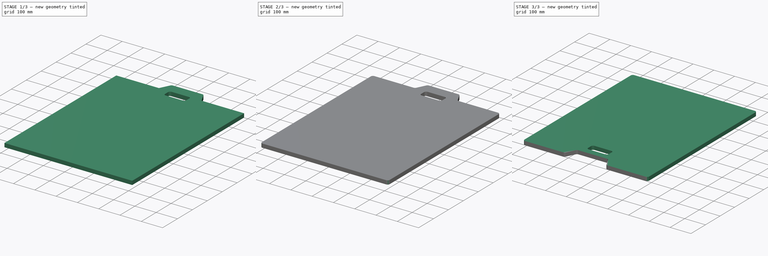
[diagram: build sequence overview — one tinted view per stage of 3, left to right]
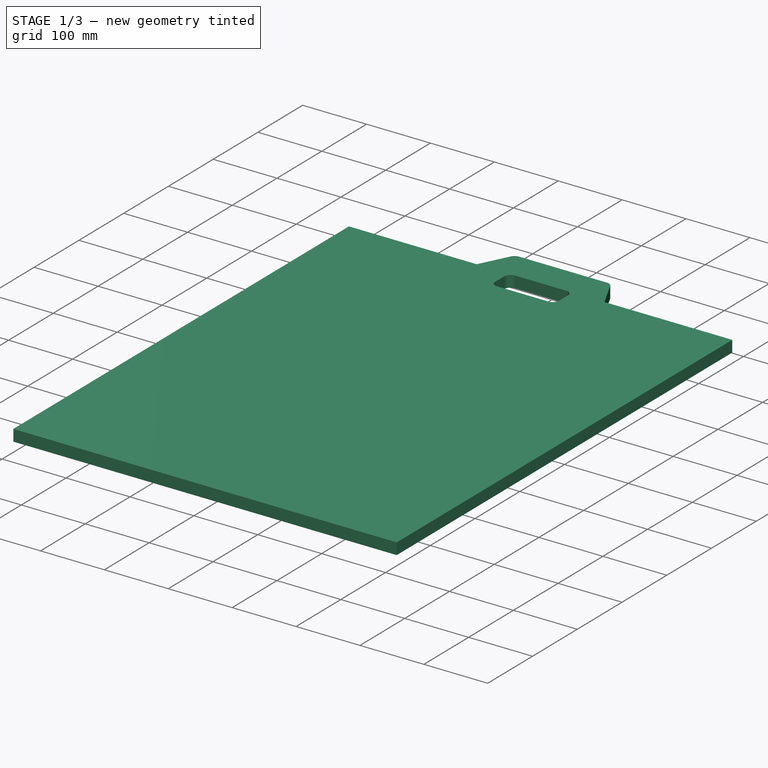
[diagram: stage 1 of 3 — iso view after this stage's code; geometry added in this stage tinted green]
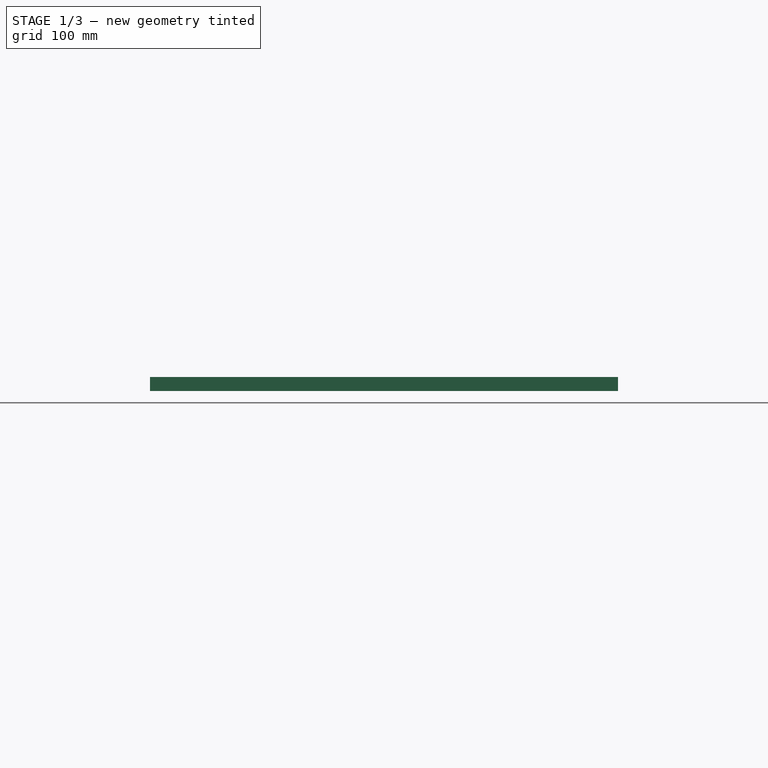
[diagram: stage 1 of 3 — front view after this stage's code; geometry added in this stage tinted green]
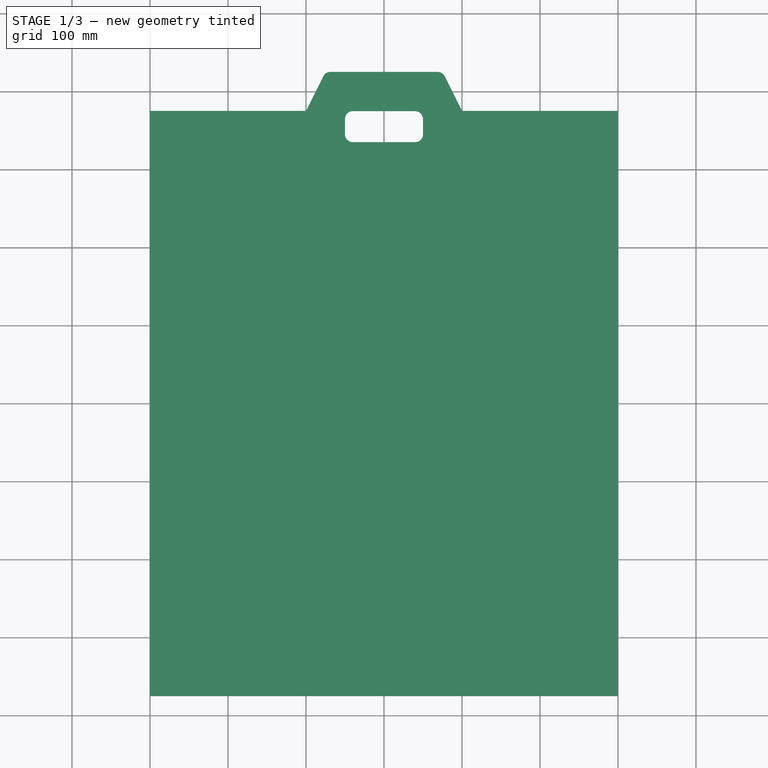
[diagram: stage 1 of 3 — top view after this stage's code; geometry added in this stage tinted green]
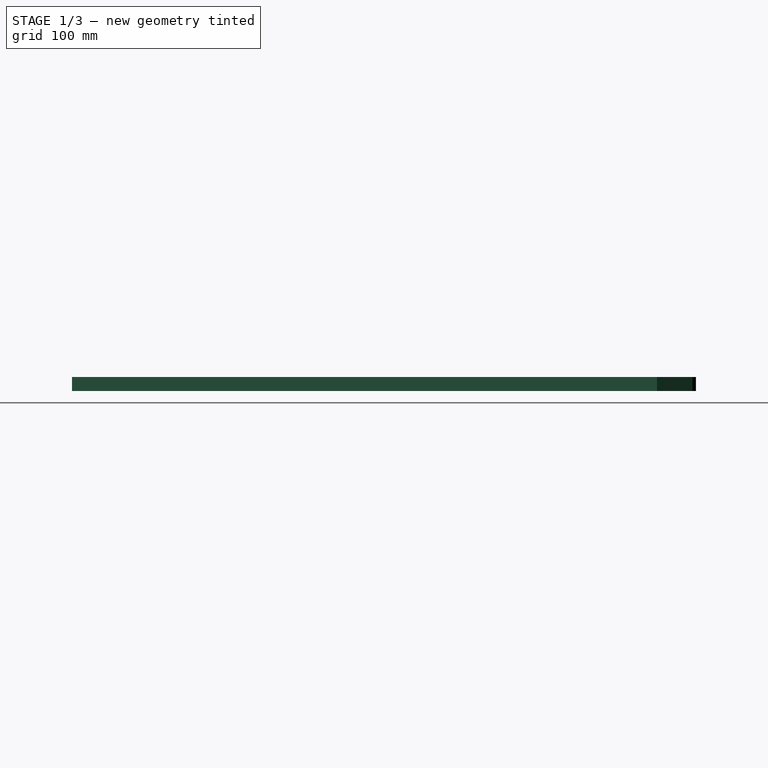
[diagram: stage 1 of 3 — right view after this stage's code; geometry added in this stage tinted green]
FCSTD DOCUMENT  (FreeCAD 1.0R39109 (Git))
Label: VERSTAK
License: All rights reserved
LicenseURL: https://en.wikipedia.org/wiki/All_rights_reserved
objects: PartDesign::Fillet×4, Sketcher::SketchObject×3, PartDesign::Body×3, PartDesign::SubShapeBinder×3, PartDesign::Pad×2
note: 30 computed .brp shape members not serialized (recipe doc carries the construction recipe); baked Part::Feature solids carry a one-line shape summary decoded from their .brp

FEATURE [Sketcher::SketchObject] Sketch
  ArcFitTolerance = 1e-06
  AttachmentSupport = -> [XY_Plane]
  FullyConstrained = true
  MakeInternals = false
  MapMode = 5
  sketch-geometry (19):
    g0: LineSegment StartX=-300 StartY=-375 StartZ=0 EndX=300 EndY=-375 EndZ=0
    g1: LineSegment StartX=300 StartY=-375 StartZ=0 EndX=300 EndY=375 EndZ=0
    g2: LineSegment StartX=-300 StartY=375 StartZ=0 EndX=-300 EndY=-375 EndZ=0
    g3: GeomPoint [constr] X=0 Y=0 Z=0
    g4: LineSegment StartX=-100 StartY=375 StartZ=0 EndX=-75 EndY=425 EndZ=0
    g5: LineSegment StartX=-75 StartY=425 StartZ=0 EndX=75 EndY=425 EndZ=0
    g6: LineSegment StartX=75 StartY=425 StartZ=0 EndX=100 EndY=375 EndZ=0
    g7: LineSegment StartX=-300 StartY=375 StartZ=0 EndX=-100 EndY=375 EndZ=0
    g8: LineSegment StartX=300 StartY=375 StartZ=0 EndX=100 EndY=375 EndZ=0
    g9: LineSegment StartX=-50 StartY=365 StartZ=0 EndX=-50 EndY=345 EndZ=0
    g10: LineSegment StartX=-40 StartY=335 StartZ=0 EndX=40 EndY=335 EndZ=0
    g11: LineSegment StartX=50 StartY=345 StartZ=0 EndX=50 EndY=365 EndZ=0
    g12: LineSegment StartX=40 StartY=375 StartZ=0 EndX=-40 EndY=375 EndZ=0
    g13: ArcOfCircle CenterX=-40 CenterY=365 CenterZ=0 NormalX=0 NormalY=0 NormalZ=1 AngleXU=0 Radius=10 StartAngle=1.5708 EndAngle=3.14159
    g14: ArcOfCircle CenterX=-40 CenterY=345 CenterZ=0 NormalX=0 NormalY=0 NormalZ=1 AngleXU=0 Radius=10 StartAngle=3.14159 EndAngle=4.71239
    g15: ArcOfCircle CenterX=40 CenterY=345 CenterZ=0 NormalX=0 NormalY=0 NormalZ=1 AngleXU=0 Radius=10 StartAngle=4.71239 EndAngle=6.28319
    g16: ArcOfCircle CenterX=40 CenterY=365 CenterZ=0 NormalX=0 NormalY=0 NormalZ=1 AngleXU=0 Radius=10 StartAngle=-1.8e-15 EndAngle=1.5708
    g17: GeomPoint [constr] X=-50 Y=375 Z=0
    g18: GeomPoint [constr] X=50 Y=335 Z=0
  constraints (45):
    c: Coincident(g0,g1)
    c: Coincident(g2,g0)
    c: Horizontal(g0)
    c: Vertical(g1)
    c: Vertical(g2)
    c: Symmetric(g1,g0,g3)
    c: Distance(g1,g2) = 600
    c: Distance(g0,g2) = 750
    c: Coincident(g3,g-1)
    c: Coincident(g4,g5)
    c: Coincident(g5,g6)
    c: DistanceX(g4,g6) = 200
    c: DistanceX(g5,g5) = 150
    c: Symmetric(g4,g6,g-2)
    c: Symmetric(g5,g4,g-2)
    c: Distance(g1,g5) = 50
    c: Coincident(g7,g2)
    c: Coincident(g7,g4)
    c: Horizontal(g7)
    c: Coincident(g8,g1)
    c: Coincident(g8,g6)
    c: Horizontal(g8)
    c: Tangent(g9,g13) = -1.5708
    c: Tangent(g9,g14) = -1.5708
    c: Tangent(g10,g14) = -1.5708
    c: Tangent(g10,g15) = -1.5708
    c: Tangent(g11,g15) = -1.5708
    c: Tangent(g11,g16) = -1.5708
    c: Tangent(g12,g16) = -1.5708
    c: Tangent(g12,g13) = -1.5708
    c: Vertical(g9)
    c: Vertical(g11)
    c: Horizontal(g10)
    c: Equal(g13,g14)
    c: Equal(g14,g15)
    c: Equal(g15,g16)
    c: PointOnObject(g17,g9)
    c: PointOnObject(g17,g12)
    c: PointOnObject(g18,g10)
    c: PointOnObject(g18,g11)
    c: Distance(g9,g11) = 100
    c: Distance(g10,g12) = 40
    c: Radius(g14) = 10
    c: Symmetric(g12,g12,g-2)
    c: Distance(g12,g5) = 50
FEATURE [PartDesign::Pad] Pad
  Direction = (0,0,1)
  Length = 18
  Length2 = 10
  Profile = -> Sketch
  ReferenceAxis = -> Sketch [N_Axis]
  Refine = true
  Suppressed = false
  Type = 0
FEATURE [PartDesign::Fillet] Fillet
  Base = -> Pad [Edge20,Edge17]
  BaseFeature = -> Pad
  Radius = 10
  Refine = true
  SupportTransform = false
  Suppressed = false
  UseAllEdges = false
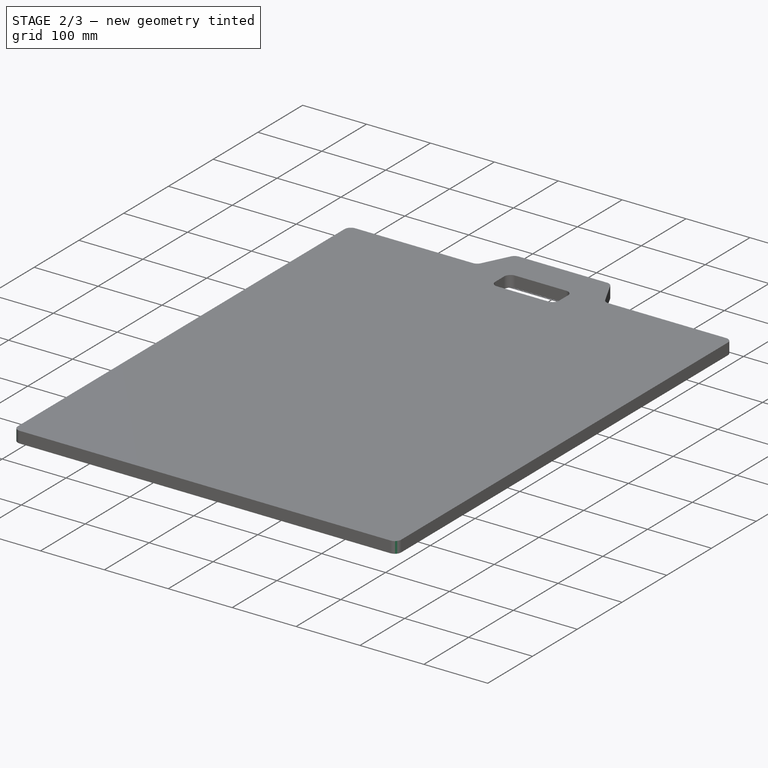
[diagram: stage 2 of 3 — iso view after this stage's code; geometry added in this stage tinted green]
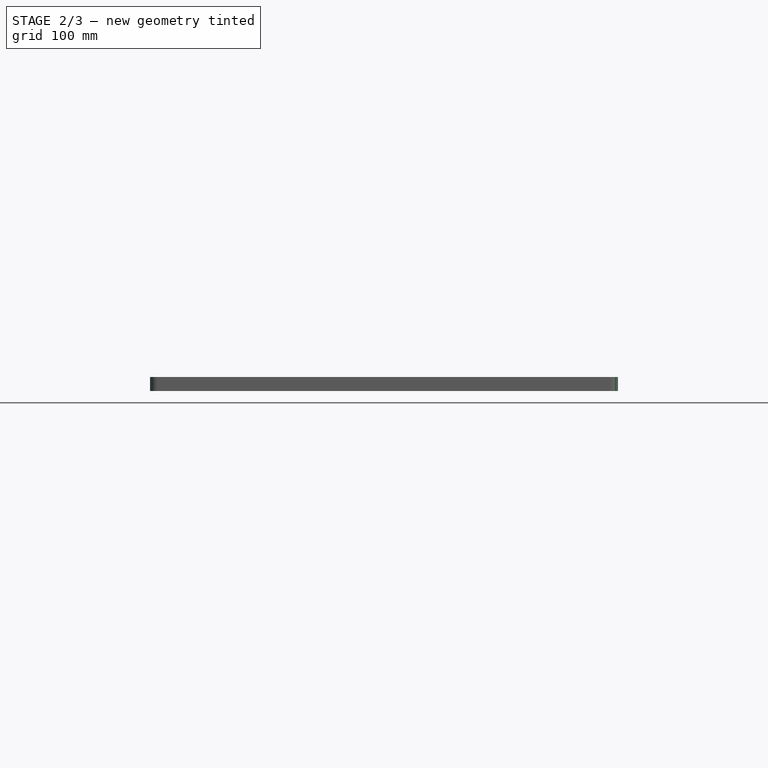
[diagram: stage 2 of 3 — front view after this stage's code; geometry added in this stage tinted green]
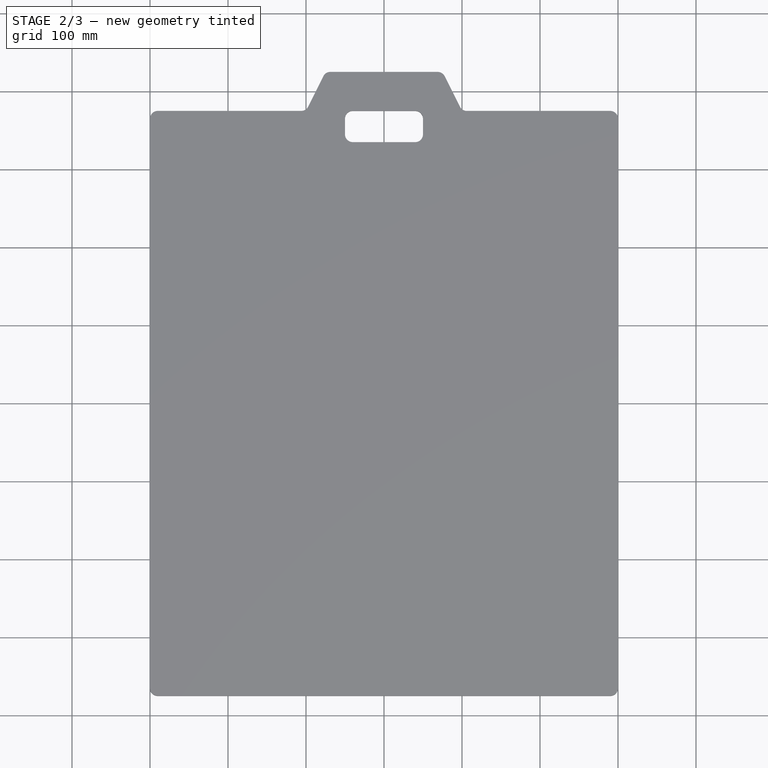
[diagram: stage 2 of 3 — top view after this stage's code; geometry added in this stage tinted green]
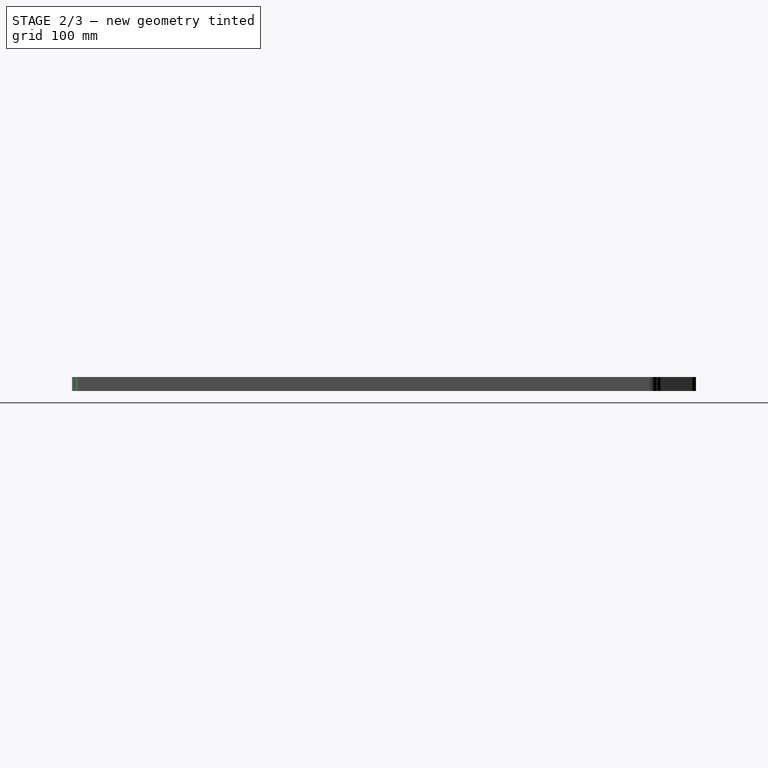
[diagram: stage 2 of 3 — right view after this stage's code; geometry added in this stage tinted green]
FEATURE [PartDesign::Fillet] Fillet001
  Base = -> Fillet [Edge45,Edge3]
  BaseFeature = -> Fillet
  Radius = 10
  Refine = true
  SupportTransform = false
  Suppressed = false
  UseAllEdges = false
FEATURE [PartDesign::Fillet] Fillet002
  Base = -> Fillet001 [Edge45,Edge51,Edge49,Edge47]
  BaseFeature = -> Fillet001
  Radius = 10
  Refine = true
  SupportTransform = false
  Suppressed = false
  UseAllEdges = false
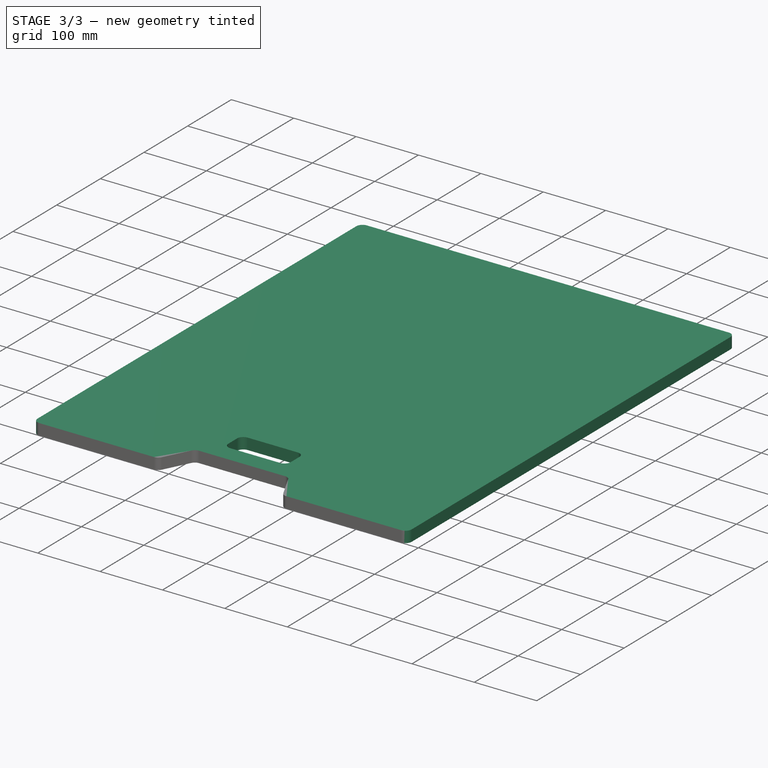
[diagram: stage 3 of 3 — iso view after this stage's code; geometry added in this stage tinted green]
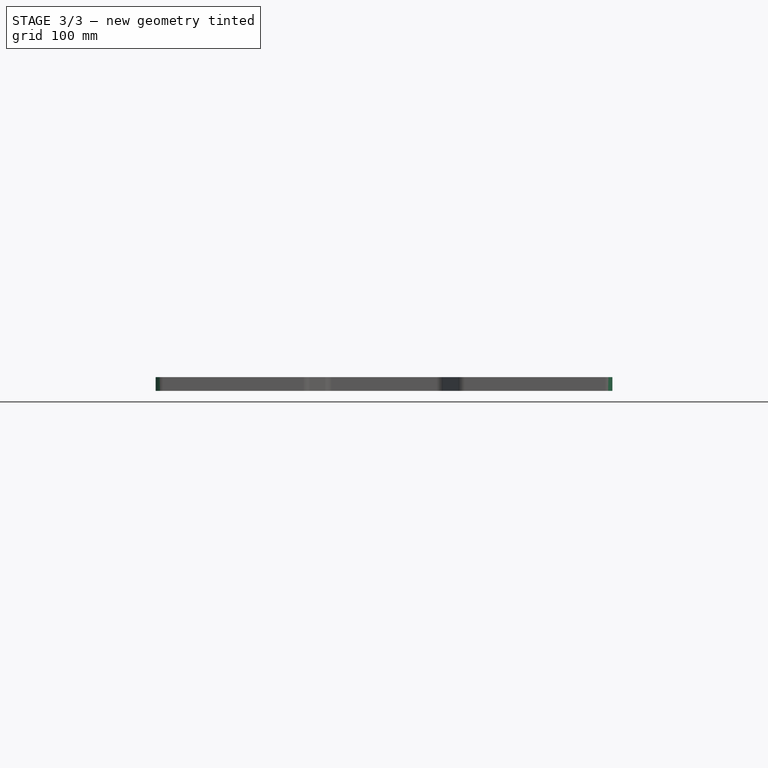
[diagram: stage 3 of 3 — front view after this stage's code; geometry added in this stage tinted green]
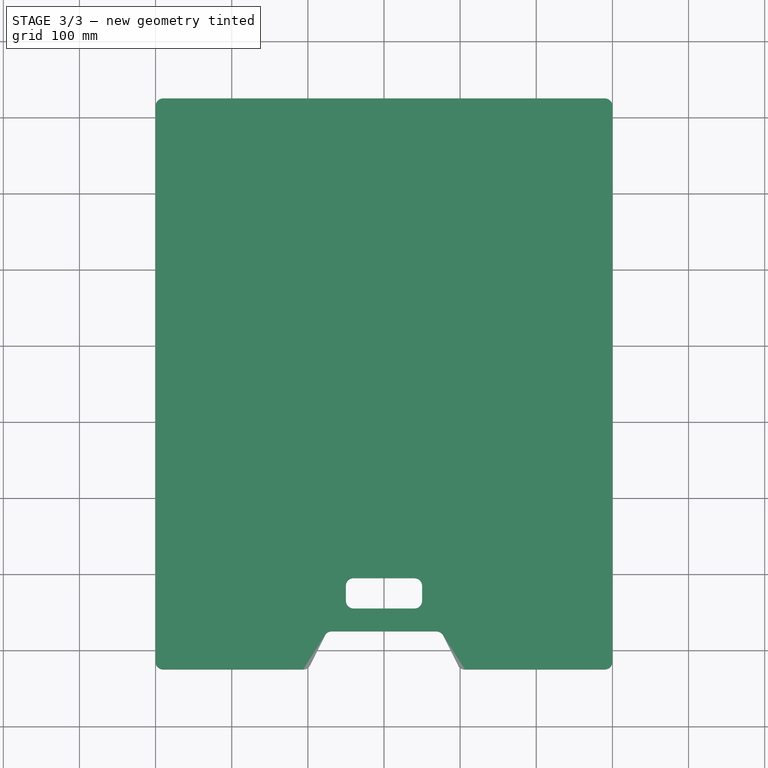
[diagram: stage 3 of 3 — top view after this stage's code; geometry added in this stage tinted green]
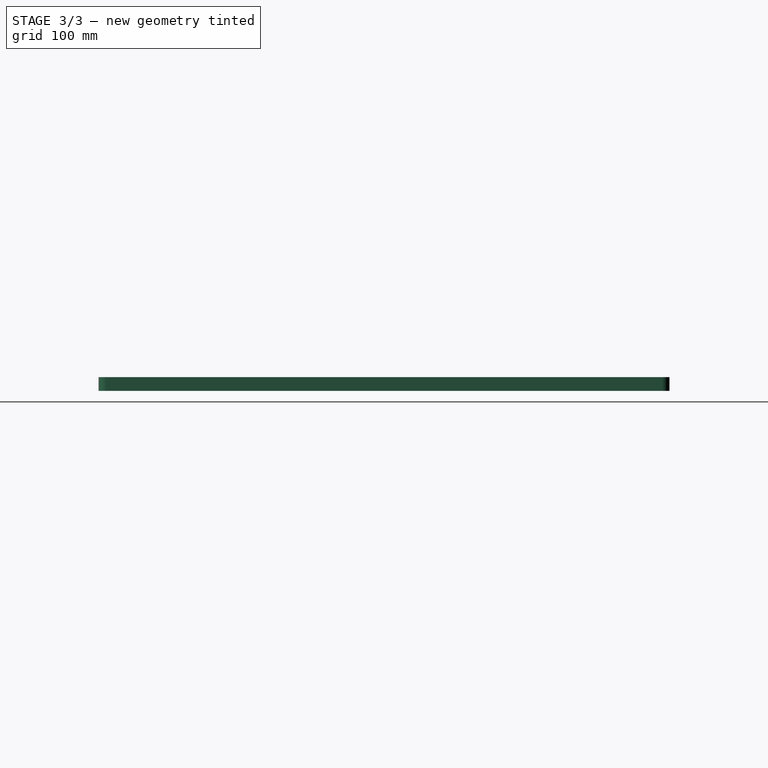
[diagram: stage 3 of 3 — right view after this stage's code; geometry added in this stage tinted green]
FEATURE [PartDesign::Body] Body
  AllowCompound = false
  Group = -> [Sketch,Pad,Fillet,Fillet001,Fillet002]
  Origin = -> Origin
  Tip = -> Fillet002
FEATURE [PartDesign::SubShapeBinder] Binder
  BindCopyOnChange = 0
  BindMode = 0
  ClaimChildren = false
  Context = -> Body001 [Binder.]
  Fuse = false
  MakeFace = true
  OffsetFill = false
  OffsetIntersection = false
  OffsetJoinType = 0
  OffsetOpenResult = false
  PartialLoad = false
  Refine = true
  Relative = true
  Support = -> [Body[Fillet002.Face26]]
  _Version = 2
FEATURE [Sketcher::SketchObject] Sketch001
  ArcFitTolerance = 1e-06
  AttachmentSupport = -> [XY_Plane001]
  ExternalGeometry = -> [Binder]
  FullyConstrained = true
  MakeInternals = false
  MapMode = 5
  sketch-geometry (18):
    g0: LineSegment StartX=-300 StartY=375 StartZ=0 EndX=-300 EndY=1125 EndZ=0
    g1: LineSegment StartX=-300 StartY=1125 StartZ=0 EndX=300 EndY=1125 EndZ=0
    g2: LineSegment StartX=300 StartY=1125 StartZ=0 EndX=300 EndY=375 EndZ=0
    g3: LineSegment StartX=300 StartY=375 StartZ=0 EndX=100 EndY=375 EndZ=0
    g4: LineSegment StartX=100 StartY=375 StartZ=0 EndX=75 EndY=425 EndZ=0
    g5: LineSegment StartX=75 StartY=425 StartZ=0 EndX=-75 EndY=425 EndZ=0
    g6: LineSegment StartX=-75 StartY=425 StartZ=0 EndX=-100 EndY=375 EndZ=0
    g7: LineSegment StartX=-100 StartY=375 StartZ=0 EndX=-300 EndY=375 EndZ=0
    g8: LineSegment StartX=-50 StartY=485 StartZ=0 EndX=-50 EndY=465 EndZ=0
    g9: LineSegment StartX=-40 StartY=455 StartZ=0 EndX=40 EndY=455 EndZ=0
    g10: LineSegment StartX=50 StartY=465 StartZ=0 EndX=50 EndY=485 EndZ=0
    g11: LineSegment StartX=40 StartY=495 StartZ=0 EndX=-40 EndY=495 EndZ=0
    g12: ArcOfCircle CenterX=-40 CenterY=485 CenterZ=0 NormalX=0 NormalY=0 NormalZ=1 AngleXU=0 Radius=10 StartAngle=1.5708 EndAngle=3.14159
    g13: ArcOfCircle CenterX=-40 CenterY=465 CenterZ=0 NormalX=0 NormalY=0 NormalZ=1 AngleXU=0 Radius=10 StartAngle=3.14159 EndAngle=4.71239
    g14: ArcOfCircle CenterX=40 CenterY=465 CenterZ=0 NormalX=0 NormalY=0 NormalZ=1 AngleXU=0 Radius=10 StartAngle=4.71239 EndAngle=6.28319
    g15: ArcOfCircle CenterX=40 CenterY=485 CenterZ=0 NormalX=0 NormalY=0 NormalZ=1 AngleXU=0 Radius=10 StartAngle=1.9e-15 EndAngle=1.5708
    g16: GeomPoint [constr] X=-50 Y=495 Z=0
    g17: GeomPoint [constr] X=50 Y=455 Z=0
  constraints (46):
    c: Vertical(g0)
    c: Coincident(g0,g1)
    c: Coincident(g1,g2)
    c: Vertical(g2)
    c: Coincident(g2,g3)
    c: Horizontal(g3)
    c: Coincident(g3,g4)
    c: Coincident(g4,g5)
    c: Horizontal(g5)
    c: Coincident(g5,g6)
    c: Coincident(g6,g7)
    c: Coincident(g7,g0)
    c: Horizontal(g7)
    c: DistanceX(g1,g1) = 600
    c: DistanceY(g0,g0) = 750
    c: Equal(g0,g2)
    c: PointOnObject(g-3,g7)
    c: Symmetric(g0,g1,g-2)
    c: PointOnObject(g-5,g5)
    c: PointOnObject(g-6,g4)
    c: PointOnObject(g-6,g4)
    c: PointOnObject(g-7,g6)
    c: PointOnObject(g-7,g6)
    c: Tangent(g8,g12) = -1.5708
    c: Tangent(g8,g13) = -1.5708
    c: Tangent(g9,g13) = -1.5708
    c: Tangent(g9,g14) = -1.5708
    c: Tangent(g10,g14) = -1.5708
    c: Tangent(g10,g15) = -1.5708
    c: Tangent(g11,g15) = -1.5708
    c: Tangent(g11,g12) = -1.5708
    c: Vertical(g8)
    c: Vertical(g10)
    c: Horizontal(g9)
    c: Equal(g12,g13)
    c: Equal(g13,g14)
    c: Equal(g14,g15)
    c: PointOnObject(g16,g8)
    c: PointOnObject(g16,g11)
    c: PointOnObject(g17,g9)
    c: PointOnObject(g17,g10)
    c: Radius(g13) = 10
    c: Distance(g10,g8) = 100
    c: Distance(g9,g11) = 40
    c: Symmetric(g11,g11,g-2)
    c: Distance(g5,g9) = 30
FEATURE [PartDesign::Pad] Pad001
  Direction = (0,0,1)
  Length = 18
  Length2 = 10
  Profile = -> Sketch001
  ReferenceAxis = -> Sketch001 [N_Axis]
  Refine = true
  Suppressed = false
  Type = 0
FEATURE [PartDesign::Fillet] Fillet003
  Base = -> Pad001 [Edge17,Edge20,Edge14,Edge11,Edge8,Edge5,Edge1,Edge2]
  BaseFeature = -> Pad001
  Radius = 10
  Refine = true
  SupportTransform = false
  Suppressed = false
  UseAllEdges = false
FEATURE [PartDesign::Body] Body001  label="Тело"
  AllowCompound = false
  Group = -> [Binder,Sketch001,Pad001,Fillet003]
  Origin = -> Origin001
  Tip = -> Fillet003
FEATURE [PartDesign::SubShapeBinder] Binder001
  BindCopyOnChange = 0
  BindMode = 0
  ClaimChildren = false
  Context = -> Body002 [Binder001.]
  Fuse = false
  MakeFace = true
  OffsetFill = false
  OffsetIntersection = false
  OffsetJoinType = 0
  OffsetOpenResult = false
  PartialLoad = false
  Refine = true
  Relative = true
  Support = -> [Body[Fillet002.Face5]]
  _Version = 2
FEATURE [PartDesign::SubShapeBinder] Binder002
  BindCopyOnChange = 0
  BindMode = 0
  ClaimChildren = false
  Context = -> Body002 [Binder002.]
  Fuse = false
  MakeFace = true
  OffsetFill = false
  OffsetIntersection = false
  OffsetJoinType = 0
  OffsetOpenResult = false
  PartialLoad = false
  Refine = true
  Relative = true
  Support = -> [Body001[Fillet003.Face11]]
  _Version = 2
FEATURE [Sketcher::SketchObject] Sketch002
  ArcFitTolerance = 1e-06
  AttachmentSupport = -> [YZ_Plane002]
  ExternalGeometry = -> [Binder001,Binder002]
  FullyConstrained = false
  MakeInternals = false
  MapMode = 5
  Placement = pos=(0,0,0) rot=(0.57735,0.57735,0.57735;2.0944rad)
  sketch-geometry (12):
    g0: LineSegment [constr] StartX=-499.207 StartY=-832 StartZ=0 EndX=1249.21 EndY=-832 EndZ=0
    g1: LineSegment [constr] StartX=375 StartY=102.679 StartZ=0 EndX=375 EndY=-832 EndZ=0
    g2: LineSegment [constr] StartX=-265 StartY=-40 StartZ=0 EndX=1015 EndY=-40 EndZ=0
    g3: Circle CenterX=75 CenterY=-40 CenterZ=0 NormalX=0 NormalY=0 NormalZ=1 AngleXU=0 Radius=40
    g4: LineSegment [constr] StartX=75 StartY=-40 StartZ=0 EndX=775 EndY=-832 EndZ=0
    g5: LineSegment StartX=28.3842 StartY=-832 StartZ=0 EndX=704.971 EndY=-66.4899 EndZ=0
    g6: LineSegment StartX=645.029 StartY=-13.5101 StartZ=0 EndX=-78.3842 EndY=-832 EndZ=0
    g7: LineSegment StartX=-78.3842 StartY=-832 StartZ=0 EndX=28.3842 EndY=-832 EndZ=0
    g8: LineSegment StartX=45.0286 StartY=-66.4899 StartZ=0 EndX=721.616 EndY=-832 EndZ=0
    g9: LineSegment StartX=104.971 StartY=-13.5101 StartZ=0 EndX=828.384 EndY=-832 EndZ=0
    g10: LineSegment StartX=721.616 StartY=-832 StartZ=0 EndX=828.384 EndY=-832 EndZ=0
    g11: ArcOfCircle CenterX=675 CenterY=-40 CenterZ=0 NormalX=0 NormalY=0 NormalZ=1 AngleXU=0 Radius=40 StartAngle=5.55937 EndAngle=8.70096
  constraints (31):
    c: Horizontal(g0)
    c: DistanceX(g-3,g-4) = 1480
    c: DistanceY(g0,g-4) = 850
    c: Symmetric(g0,g0,g1)
    c: Vertical(g1)
    c: Distance(g-6,g1) = 740
    c: DistanceX(g2,g-5) = 100
    c: Symmetric(g2,g2,g1)
    c: DistanceY(g2,g-5) = 40
    c: Diameter(g3) = 80
    c: Coincident(g4,g3)
    c: Distance(g4,g1) = 400
    c: PointOnObject(g4,g0)
    c: PointOnObject(g5,g0)
    c: PointOnObject(g6,g0)
    c: Coincident(g7,g6)
    c: Coincident(g7,g5)
    c: Tangent(g8,g3) = -1.5708
    c: Parallel(g8,g4)
    c: PointOnObject(g9,g0)
    c: Parallel(g9,g4)
    c: Tangent(g9,g3) = 1.5708
    c: Coincident(g10,g8)
    c: Coincident(g10,g9)
    c: Tangent(g11,g5) = -1.5708
    c: Tangent(g11,g6) = -1.5708
    c: Distance(g11,g1) = 300
    c: Distance(g11,g5) = 40
    c: Distance(g11,g-5) = 40
    c: Parallel(g6,g5)
    c: Symmetric(g5,g8,g1)
FEATURE [PartDesign::Body] Body002  label="Тело001"
  AllowCompound = false
  Group = -> [Binder001,Binder002,Sketch002]
  Origin = -> Origin002
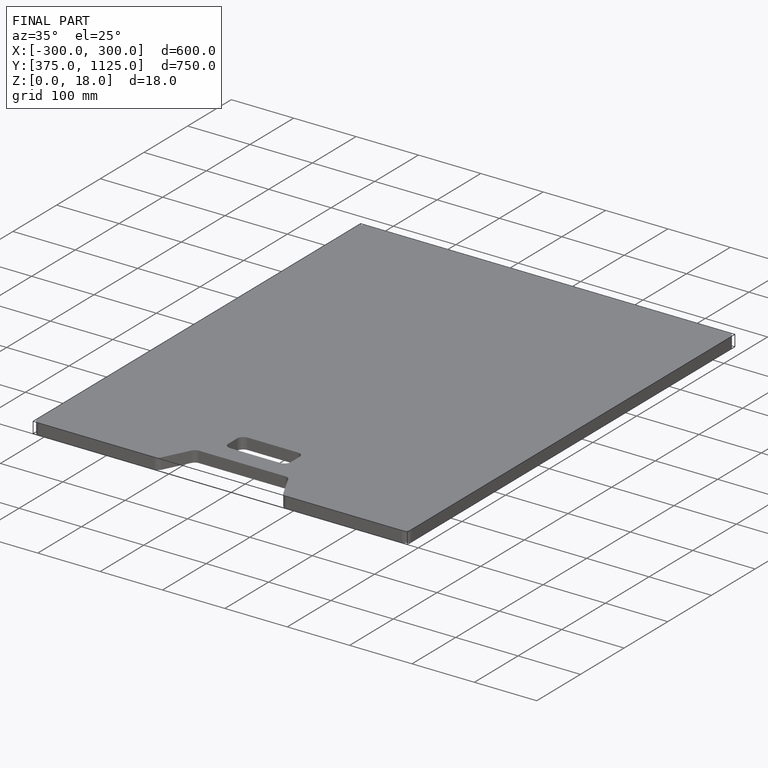
[diagram: finished part — iso view with bounding-box wireframe]
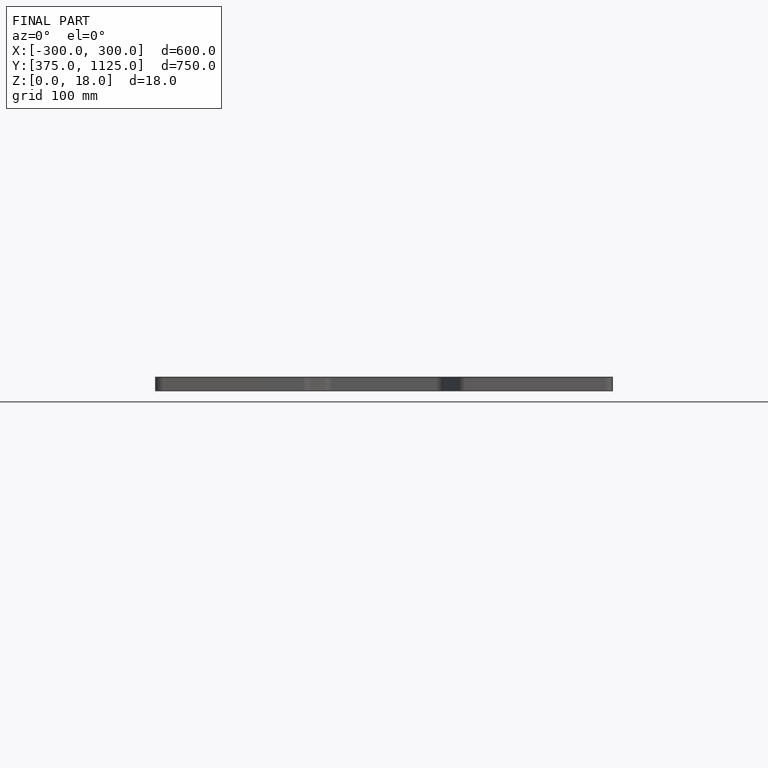
[diagram: finished part — front view with bounding-box wireframe]
